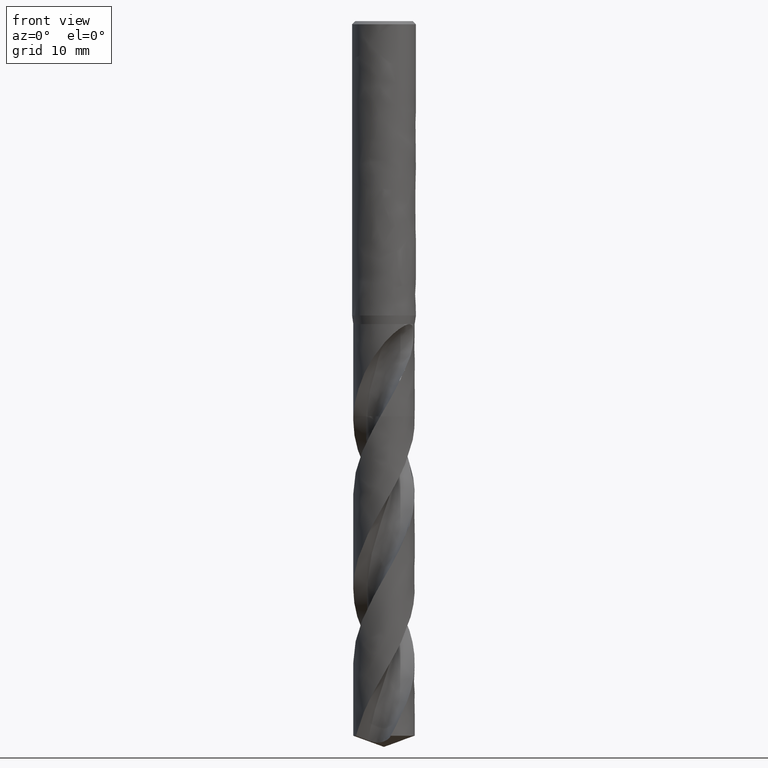
[diagram: clean part render]
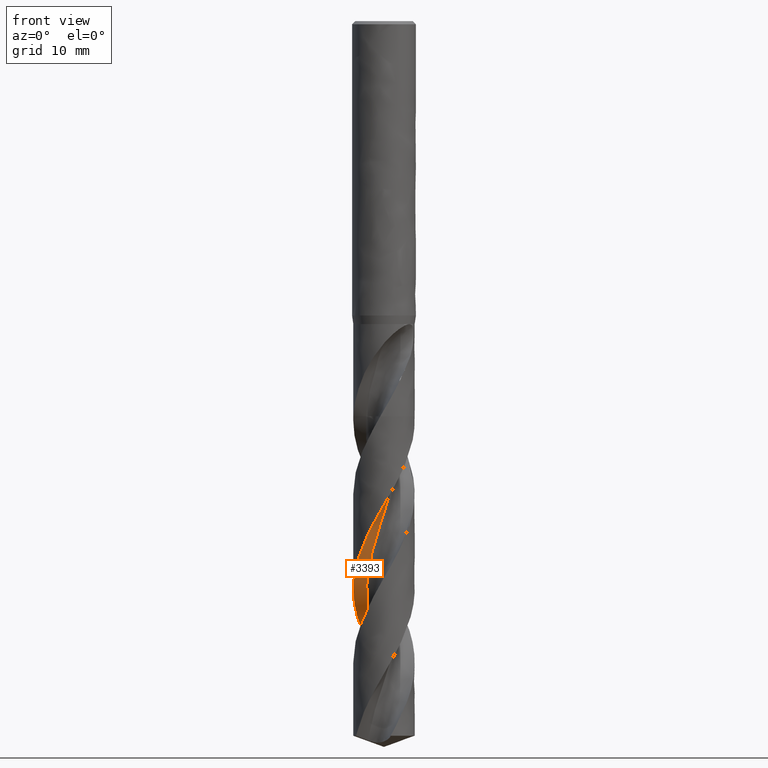
[diagram: same view with one face highlighted and labeled with its STEP entity id]
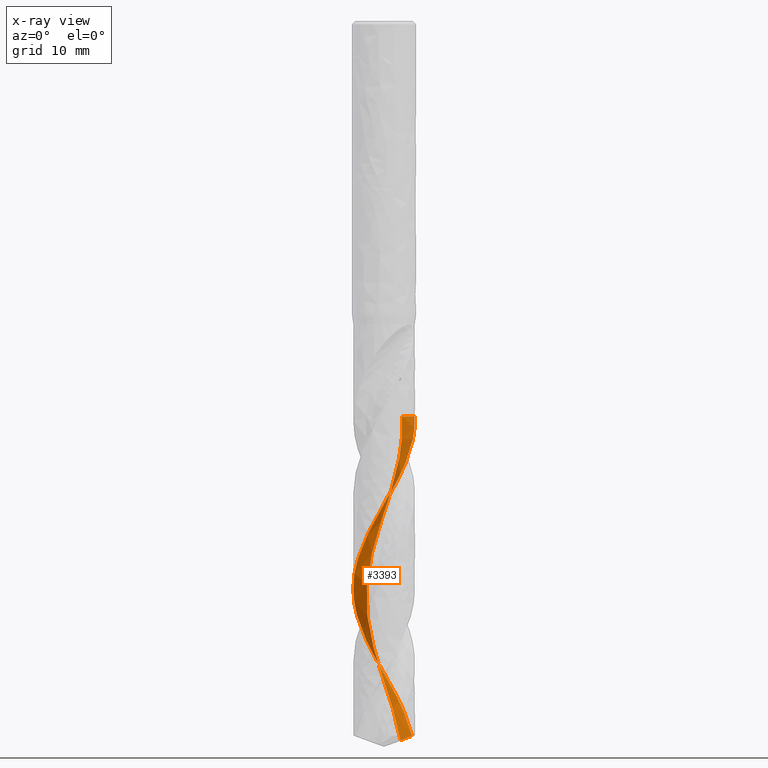
[diagram: x-ray of the same camera — body ghosted, the highlighted face saturated]
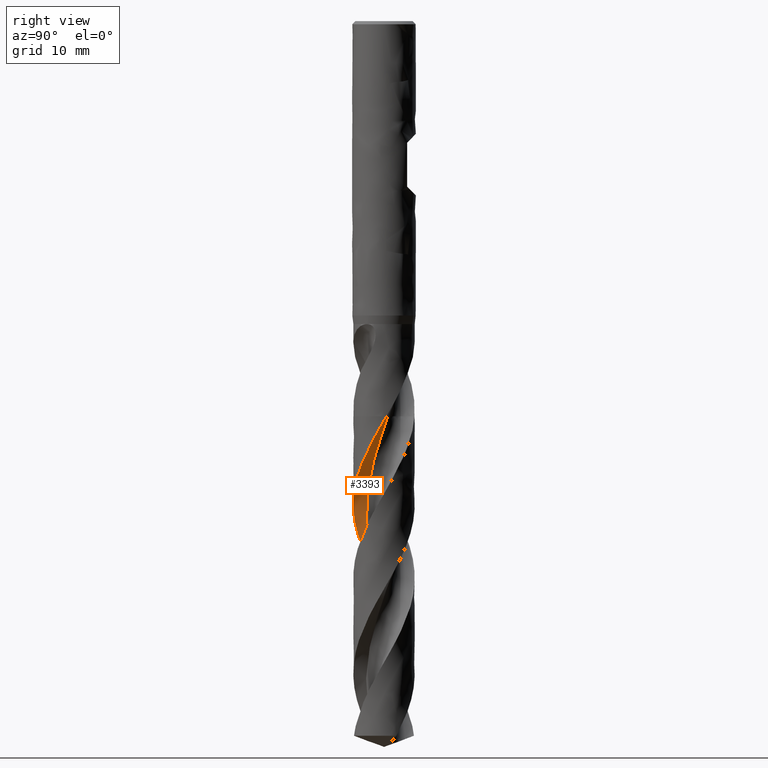
[diagram: same view with one face highlighted and labeled with its STEP entity id]
A machine part, front view. The second image highlights one B-rep face of the part: STEP entity #3393.
The next image is the same camera in x-ray: the body ghosted, the highlighted face saturated — about 0% of this face is hidden behind the body in this view.
A second angle (right view) of the same face is appended — the face is thin or edge-on in the first view.
In plain terms, the highlighted face is a freeform B-spline surface patch.
Its self-contained STEP definition (entity closure, byte-faithful):
#2011 = VERTEX_POINT('', #2012);
#2012 = CARTESIAN_POINT('', (3.83800601079286, 0.303660766510749, -49.55));
#2019 = EDGE_CURVE('', #2011, #2020, #2022, .T.);
#2020 = VERTEX_POINT('', #2021);
#2021 = CARTESIAN_POINT('', (2.24983323965265, 0.501191650524555, -49.55));
#2022 = LINE('', #2023, #2024);
#2023 = CARTESIAN_POINT('', (3.83800601079286, 0.303660766510751, -49.55));
#2024 = VECTOR('', #2025, 1.6004096978994);
#2025 = DIRECTION('', (-1.58817277114021, 0.197530884013801, 7.105427357601E-15));
#2829 = EDGE_CURVE('', #2830, #2020, #2832, .T.);
#2830 = VERTEX_POINT('', #2831);
#2831 = CARTESIAN_POINT('', (2.04984903871205, 1.05382090805576, -90.1610964100838));
#2832 = B_SPLINE_CURVE_WITH_KNOTS('', 3, (#2833, #2834, #2835, #2836, #2837, #2838, #2839, #2840, #2841, #2842, #2843, #2844, #2845, #2846, #2847, #2848, #2849, #2850, #2851, #2852, #2853, #2854, #2855, #2856, #2857, #2858, #2859, #2860, #2861, #2862, #2863, #2864, #2865, #2866, #2867, #2868, #2869, #2870, #2871, #2872, #2873, #2874, #2875, #2876, #2877, #2878, #2879, #2880, #2881, #2882, #2883, #2884, #2885, #2886, #2887, #2888, #2889, #2890, #2891, #2892, #2893), .UNSPECIFIED., .F., .U., (4, 1, 1, 1, 1, 1, 1, 1, 1, 1, 1, 1, 1, 1, 1, 1, 1, 1, 1, 1, 1, 1, 1, 1, 1, 1, 1, 1, 1, 1, 1, 1, 1, 1, 1, 1, 1, 1, 1, 1, 1, 1, 1, 1, 1, 1, 1, 1, 1, 1, 1, 1, 1, 1, 1, 1, 1, 1, 4), (0.888903589916143, 1.4152, 2.1228, 2.8304, 3.538, 4.2456, 4.9532, 5.6608, 6.3684, 7.076, 7.7836, 8.4912, 9.1988, 9.9064, 10.614, 11.3216, 12.0292, 12.7368, 13.4444, 14.152, 14.8596, 15.5672, 16.2748, 16.9824, 17.69, 18.3976, 19.1052, 19.8128, 20.5204, 21.228, 21.9356, 22.6432, 23.3508, 24.0584, 24.766, 25.4736, 26.1812, 26.8888, 27.5964, 28.304, 29.0116, 29.7192, 30.4268, 31.1344, 31.842, 32.5496, 33.2572, 33.9648, 34.6724, 35.38, 36.0876, 36.7952, 37.5028, 38.2104, 38.918, 39.6256, 40.3332, 41.0408, 41.5), .UNSPECIFIED.);
#2833 = CARTESIAN_POINT('', (2.04984903871205, 1.05382090805576, -90.1610964100838));
#2834 = CARTESIAN_POINT('', (2.02103381210276, 1.10648672607858, -89.9856642733892));
#2835 = CARTESIAN_POINT('', (1.94876683453233, 1.22722222135117, -89.5743654700279));
#2836 = CARTESIAN_POINT('', (1.81850024308474, 1.4057788551145, -88.9272));
#2837 = CARTESIAN_POINT('', (1.65695752566754, 1.58468043073655, -88.2196));
#2838 = CARTESIAN_POINT('', (1.47813150573799, 1.7454137495458, -87.512));
#2839 = CARTESIAN_POINT('', (1.28402740732162, 1.88634392457732, -86.8044));
#2840 = CARTESIAN_POINT('', (1.07680032466541, 2.00605253399641, -86.0968));
#2841 = CARTESIAN_POINT('', (0.858733576173096, 2.10335208220543, -85.3892));
#2842 = CARTESIAN_POINT('', (0.63221400838133, 2.17729686671852, -84.6816));
#2843 = CARTESIAN_POINT('', (0.399706887349605, 2.22719164344342, -83.974));
#2844 = CARTESIAN_POINT('', (0.163729993308246, 2.25259762179826, -83.2664));
#2845 = CARTESIAN_POINT('', (-0.0731726494567177, 2.25333585201957, -82.5588));
#2846 = CARTESIAN_POINT('', (-0.308457190811953, 2.22948795730268, -81.8512));
#2847 = CARTESIAN_POINT('', (-0.539606246486566, 2.18139422539124, -81.1436));
#2848 = CARTESIAN_POINT('', (-0.764154807097061, 2.10964908993927, -80.436));
#2849 = CARTESIAN_POINT('', (-0.979715509316002, 2.01509405952071, -79.7284));
#2850 = CARTESIAN_POINT('', (-1.18400302266844, 1.89880817570459, -79.0208));
#2851 = CARTESIAN_POINT('', (-1.37485731492383, 1.76209610512679, -78.3132));
#2852 = CARTESIAN_POINT('', (-1.55026557106053, 1.60647399264726, -77.6056));
#2853 = CARTESIAN_POINT('', (-1.70838255470915, 1.43365322359537, -76.898));
#2854 = CARTESIAN_POINT('', (-1.84754921682157, 1.24552226251797, -76.1904));
#2855 = CARTESIAN_POINT('', (-1.96630937387617, 1.04412675361325, -75.4828));
#2856 = CARTESIAN_POINT('', (-2.06342429705999, 0.831648084004638, -74.7752));
#2857 = CARTESIAN_POINT('', (-2.13788507438417, 0.610380625053217, -74.0676));
#2858 = CARTESIAN_POINT('', (-2.18892262940193, 0.382707878908607, -73.36));
#2859 = CARTESIAN_POINT('', (-2.21601530291157, 0.151077767361003, -72.6524));
#2860 = CARTESIAN_POINT('', (-2.21889392753485, -0.0820226922978167, -71.9448));
#2861 = CARTESIAN_POINT('', (-2.19754434915417, -0.314093074328636, -71.2372));
#2862 = CARTESIAN_POINT('', (-2.15220737365574, -0.542645341387439, -70.5296));
#2863 = CARTESIAN_POINT('', (-2.08337614204358, -0.765229497317555, -69.822));
#2864 = CARTESIAN_POINT('', (-1.99179096154405, -0.979458843679843, -69.1144));
#2865 = CARTESIAN_POINT('', (-1.87843164459659, -1.18303459175878, -68.4068));
#2866 = CARTESIAN_POINT('', (-1.7445074314091, -1.37376958801668, -67.6992));
#2867 = CARTESIAN_POINT('', (-1.5914445948387, -1.54961091943134, -66.9916));
#2868 = CARTESIAN_POINT('', (-1.42087184853484, -1.70866117576985, -66.284));
#2869 = CARTESIAN_POINT('', (-1.23460370035823, -1.84919815853085, -65.5764));
#2870 = CARTESIAN_POINT('', (-1.03462191287736, -1.96969284091967, -64.8688));
#2871 = CARTESIAN_POINT('', (-0.823055251068922, -2.06882539967931, -64.1612));
#2872 = CARTESIAN_POINT('', (-0.602157714043834, -2.14549915774408, -63.4536));
#2873 = CARTESIAN_POINT('', (-0.374285462535127, -2.19885229635597, -62.746));
#2874 = CARTESIAN_POINT('', (-0.141872666880699, -2.22826721631666, -62.0384));
#2875 = CARTESIAN_POINT('', (0.0925934888102589, -2.23337745026038, -61.3308));
#2876 = CARTESIAN_POINT('', (0.326598401807949, -2.21407205103085, -60.6232));
#2877 = CARTESIAN_POINT('', (0.557625994155188, -2.17049740522884, -59.9156));
#2878 = CARTESIAN_POINT('', (0.783184748955086, -2.10305644555703, -59.208));
#2879 = CARTESIAN_POINT('', (1.00083358229532, -2.01240526050243, -58.5004));
#2880 = CARTESIAN_POINT('', (1.20820729399744, -1.89944712497244, -57.7928));
#2881 = CARTESIAN_POINT('', (1.40304134333713, -1.76532400040793, -57.0852));
#2882 = CARTESIAN_POINT('', (1.58319570080842, -1.61140557780637, -56.3776));
#2883 = CARTESIAN_POINT('', (1.74667753585619, -1.43927596030361, -55.67));
#2884 = CARTESIAN_POINT('', (1.8916625058272, -1.25071810875393, -54.9624));
#2885 = CARTESIAN_POINT('', (2.01651444072892, -1.0476961834024, -54.2548));
#2886 = CARTESIAN_POINT('', (2.1198031686167, -0.832335983536132, -53.5472));
#2887 = CARTESIAN_POINT('', (2.20032048194924, -0.606903529274961, -52.8396));
#2888 = CARTESIAN_POINT('', (2.25709337093956, -0.373782510547969, -52.132));
#2889 = CARTESIAN_POINT('', (2.28939700108811, -0.135448871771513, -51.4244));
#2890 = CARTESIAN_POINT('', (2.29675750173599, 0.105549955315949, -50.7168));
#2891 = CARTESIAN_POINT('', (2.28106116815226, 0.318427098840582, -50.092));
#2892 = CARTESIAN_POINT('', (2.25990113224322, 0.449785322491195, -49.7030666666667));
#2893 = CARTESIAN_POINT('', (2.24983323965265, 0.501191650524555, -49.55));
#3393 = ADVANCED_FACE('', (#3394), #3669, .T.);
#3394 = FACE_OUTER_BOUND('', #3395, .T.);
#3395 = EDGE_LOOP('', (#3396, #3397, #3532, #3640, #3668));
#3396 = ORIENTED_EDGE('', *, *, #2019, .F.);
#3397 = ORIENTED_EDGE('', *, *, #3398, .T.);
#3398 = EDGE_CURVE('', #2011, #3399, #3401, .T.);
#3399 = VERTEX_POINT('', #3400);
#3400 = CARTESIAN_POINT('', (-3.85, 4.59519978251764E-15, -71.1953075240469));
#3401 = B_SPLINE_CURVE_WITH_KNOTS('', 3, (#3402, #3403, #3404, #3405, #3406, #3407, #3408, #3409, #3410, #3411, #3412, #3413, #3414, #3415, #3416, #3417, #3418, #3419, #3420, #3421, #3422, #3423, #3424, #3425, #3426, #3427, #3428, #3429, #3430, #3431, #3432, #3433, #3434, #3435, #3436, #3437, #3438, #3439, #3440, #3441, #3442, #3443, #3444, #3445, #3446, #3447, #3448, #3449, #3450, #3451, #3452, #3453, #3454, #3455, #3456, #3457, #3458, #3459, #3460, #3461, #3462, #3463, #3464, #3465, #3466, #3467, #3468, #3469, #3470, #3471, #3472, #3473, #3474, #3475, #3476, #3477, #3478, #3479, #3480, #3481, #3482, #3483, #3484, #3485, #3486, #3487, #3488, #3489, #3490, #3491, #3492, #3493, #3494, #3495, #3496, #3497, #3498, #3499, #3500, #3501, #3502, #3503, #3504, #3505, #3506, #3507, #3508, #3509, #3510, #3511, #3512, #3513, #3514, #3515, #3516, #3517, #3518, #3519, #3520, #3521, #3522, #3523, #3524, #3525, #3526, #3527, #3528, #3529, #3530, #3531), .UNSPECIFIED., .F., .U., (4, 3, 3, 3, 3, 3, 3, 3, 3, 3, 3, 3, 3, 3, 3, 3, 3, 3, 3, 3, 3, 3, 3, 3, 3, 3, 3, 3, 3, 3, 3, 3, 3, 3, 3, 3, 3, 3, 3, 3, 3, 3, 3, 4), (10.9857827631477, 11.188417739098, 11.4837201776455, 11.5712738476636, 11.62965585615, 12.2960882243106, 12.9623371352114, 13.6284118787598, 14.2943172719508, 14.960058236566, 15.6256386833556, 16.2910615719719, 16.9563293275744, 17.6214440337716, 18.2864071459314, 18.9512194453559, 19.6158810105021, 20.2803912615972, 20.9447493495559, 21.608953908022, 22.2730028992134, 22.9368935374582, 23.6006222185998, 23.7319343610657, 23.7903196670728, 24.4567414647797, 25.1229833398523, 25.7890518383752, 26.4549525460622, 27.1206901327414, 27.7862683922648, 28.4516903106396, 29.1169584224096, 29.7820747374945, 30.4470406419059, 31.1118568765424, 31.7765235141929, 32.4410400979626, 33.105405801609, 33.7696192245882, 34.4336783239857, 35.0975803406812, 35.7613217687518, 35.9290390869403), .UNSPECIFIED.);
#3402 = CARTESIAN_POINT('', (3.83800601079286, 0.303660766510749, -49.55));
#3403 = CARTESIAN_POINT('', (3.8406597006322, 0.270120452194859, -49.608569029255));
#3404 = CARTESIAN_POINT('', (3.84287393979801, 0.236541148428157, -49.6671486422412));
#3405 = CARTESIAN_POINT('', (3.84464734947737, 0.202945209741275, -49.7257190602344));
#3406 = CARTESIAN_POINT('', (3.84723176117826, 0.153985435778242, -49.8110744495448));
#3407 = CARTESIAN_POINT('', (3.84888080603868, 0.104976243516454, -49.8964349491654));
#3408 = CARTESIAN_POINT('', (3.84959334240378, 0.0559562161021219, -49.9817919075163));
#3409 = CARTESIAN_POINT('', (3.84980460098361, 0.0414223594715328, -50.0070992331244));
#3410 = CARTESIAN_POINT('', (3.84993355132485, 0.0268872853742352, -50.032406680502));
#3411 = CARTESIAN_POINT('', (3.84998018530962, 0.0123520331640183, -50.0577140433958));
#3412 = CARTESIAN_POINT('', (3.85001128150119, 0.00265972423267838, -50.0745893459951));
#3413 = CARTESIAN_POINT('', (3.85000577691238, -0.00703270454643437, -50.0914646868949));
#3414 = CARTESIAN_POINT('', (3.84996367208802, -0.0167249395367963, -50.1083400080855));
#3415 = CARTESIAN_POINT('', (3.84948304426219, -0.127362091030246, -50.3009723027961));
#3416 = CARTESIAN_POINT('', (3.84422865657569, -0.238001535680308, -50.4936503107669));
#3417 = CARTESIAN_POINT('', (3.83422389558296, -0.348176849520702, -50.6862880958372));
#3418 = CARTESIAN_POINT('', (3.82422188872722, -0.458321834010137, -50.87887285107));
#3419 = CARTESIAN_POINT('', (3.80946771818799, -0.568053307828705, -51.0715061598658));
#3420 = CARTESIAN_POINT('', (3.79002458757251, -0.676914784589994, -51.264098966706));
#3421 = CARTESIAN_POINT('', (3.77058653967992, -0.785747803345779, -51.4566414269285));
#3422 = CARTESIAN_POINT('', (3.74645291760008, -0.893761914520464, -51.6492315149754));
#3423 = CARTESIAN_POINT('', (3.71772580347537, -1.00050729641205, -51.8417808308007));
#3424 = CARTESIAN_POINT('', (3.68900599325625, -1.10722553815344, -52.0342811907156));
#3425 = CARTESIAN_POINT('', (3.65568196523922, -1.21272429520639, -52.2268294018581));
#3426 = CARTESIAN_POINT('', (3.61789391337796, -1.31656508822878, -52.419336939445));
#3427 = CARTESIAN_POINT('', (3.58011519232496, -1.42038024038106, -52.611796942141));
#3428 = CARTESIAN_POINT('', (3.53785754787914, -1.52258531102665, -52.8043048975619));
#3429 = CARTESIAN_POINT('', (3.49129795518707, -1.62275647837457, -52.9967720682146));
#3430 = CARTESIAN_POINT('', (3.44474958854985, -1.72290349329859, -53.1891928328124));
#3431 = CARTESIAN_POINT('', (3.39388029020878, -1.8210628702524, -53.3816613771972));
#3432 = CARTESIAN_POINT('', (3.33890281896738, -1.91682757844614, -53.5740893481465));
#3433 = CARTESIAN_POINT('', (3.2839383621557, -2.0125696169347, -53.7664717669769));
#3434 = CARTESIAN_POINT('', (3.22484253132079, -2.10596189528421, -53.9589017288472));
#3435 = CARTESIAN_POINT('', (3.16186236225687, -2.19661703584021, -54.1512913551711));
#3436 = CARTESIAN_POINT('', (3.09889687604139, -2.28725104155789, -54.343636128841));
#3437 = CARTESIAN_POINT('', (3.03201983967958, -2.37519096740074, -54.5360283246996));
#3438 = CARTESIAN_POINT('', (2.96151039042569, -2.46007239881281, -54.7283802094637));
#3439 = CARTESIAN_POINT('', (2.89101716235371, -2.54493430267002, -54.9206878423588));
#3440 = CARTESIAN_POINT('', (2.81686094903232, -2.62677797023103, -55.1130430088729));
#3441 = CARTESIAN_POINT('', (2.7393504232359, -2.70526509952671, -55.3053577314649));
#3442 = CARTESIAN_POINT('', (2.66185756376597, -2.78373433990683, -55.4976286213692));
#3443 = CARTESIAN_POINT('', (2.58097692323488, -2.85888403940126, -55.6899471586262));
#3444 = CARTESIAN_POINT('', (2.49704434736988, -2.93040432829125, -55.8822251632055));
#3445 = CARTESIAN_POINT('', (2.41313080729968, -3.00190839647637, -56.0744595593932));
#3446 = CARTESIAN_POINT('', (2.32612904043707, -3.069816809754, -56.2667415686434));
#3447 = CARTESIAN_POINT('', (2.23639991120271, -3.1338499385217, -56.4589831324085));
#3448 = CARTESIAN_POINT('', (2.14669112644084, -3.19786854892466, -56.6511811088431));
#3449 = CARTESIAN_POINT('', (2.05421563854165, -3.25804256985556, -56.8434264604821));
#3450 = CARTESIAN_POINT('', (1.95935719420639, -3.31412422602286, -57.0356316478907));
#3451 = CARTESIAN_POINT('', (1.86452034494485, -3.37019311487663, -57.2277930786763));
#3452 = CARTESIAN_POINT('', (1.76725814110251, -3.42219719987466, -57.4200016498762));
#3453 = CARTESIAN_POINT('', (1.66797416686946, -3.46992250326374, -57.61217019994));
#3454 = CARTESIAN_POINT('', (1.56871292721557, -3.51763687825581, -57.8042947462142));
#3455 = CARTESIAN_POINT('', (1.46738538487668, -3.56109630220109, -57.9964664800108));
#3456 = CARTESIAN_POINT('', (1.36441114158311, -3.60012253079307, -58.1885980892258));
#3457 = CARTESIAN_POINT('', (1.26146069506963, -3.6391397406387, -58.3806852978849));
#3458 = CARTESIAN_POINT('', (1.15681777925634, -3.67374346500184, -58.5728198467729));
#3459 = CARTESIAN_POINT('', (1.05091461640444, -3.70379244410746, -58.7649141251484));
#3460 = CARTESIAN_POINT('', (0.945036257758152, -3.7338343852641, -58.9569634119877));
#3461 = CARTESIAN_POINT('', (0.837850928209692, -3.75933715341995, -59.1490600941136));
#3462 = CARTESIAN_POINT('', (0.729800623026448, -3.78019722377421, -59.3411164989748));
#3463 = CARTESIAN_POINT('', (0.621776084141214, -3.80105231971597, -59.5331271049597));
#3464 = CARTESIAN_POINT('', (0.512838642037153, -3.8172762545525, -59.7251849390947));
#3465 = CARTESIAN_POINT('', (0.403437575832972, -3.82880374561117, -59.9172027312444));
#3466 = CARTESIAN_POINT('', (0.294063198180721, -3.84032842452135, -60.1091736803698));
#3467 = CARTESIAN_POINT('', (0.184175763604534, -3.84716416562427, -60.3011915549341));
#3468 = CARTESIAN_POINT('', (0.0742288039468324, -3.84928436006811, -60.4931696496648));
#3469 = CARTESIAN_POINT('', (0.0524768874778473, -3.84970381952914, -60.5311506133354));
#3470 = CARTESIAN_POINT('', (0.0307214690042521, -3.84993889463845, -60.5691320553479));
#3471 = CARTESIAN_POINT('', (0.00896604345663941, -3.84998955973451, -60.6071132916357));
#3472 = CARTESIAN_POINT('', (-0.000707069433455552, -3.85001208695158, -60.6240008852851));
#3473 = CARTESIAN_POINT('', (-0.0103802394914002, -3.84999815824868, -60.6408885341667));
#3474 = CARTESIAN_POINT('', (-0.0200531578907964, -3.84994777508214, -60.6577761790855));
#3475 = CARTESIAN_POINT('', (-0.130461822495741, -3.84937269133732, -60.8505352045229));
#3476 = CARTESIAN_POINT('', (-0.240864733995843, -3.84404367760486, -61.0433417542151));
#3477 = CARTESIAN_POINT('', (-0.350803028482814, -3.83398451160261, -61.2361080127081));
#3478 = CARTESIAN_POINT('', (-0.460711641486346, -3.82392806140535, -61.4288222275658));
#3479 = CARTESIAN_POINT('', (-0.570206537894004, -3.8091393770798, -61.6215837859571));
#3480 = CARTESIAN_POINT('', (-0.678832875322091, -3.78968150738061, -61.8143051239944));
#3481 = CARTESIAN_POINT('', (-0.787430944848844, -3.77022870121532, -62.0069763100345));
#3482 = CARTESIAN_POINT('', (-0.895210652450566, -3.74610025362731, -62.1996949535274));
#3483 = CARTESIAN_POINT('', (-1.00172539476705, -3.71739777713915, -62.3923732237486));
#3484 = CARTESIAN_POINT('', (-1.10821330471165, -3.68870253115736, -62.5850029559469));
#3485 = CARTESIAN_POINT('', (-1.21348491758035, -3.65542264441597, -62.7776803064285));
#3486 = CARTESIAN_POINT('', (-1.31710516335854, -3.6176973323724, -62.9703171443625));
#3487 = CARTESIAN_POINT('', (-1.4207000260147, -3.5799812616329, -63.1629067934066));
#3488 = CARTESIAN_POINT('', (-1.52269059232123, -3.53780511005229, -63.3555440734511));
#3489 = CARTESIAN_POINT('', (-1.62265591820821, -3.49134469382556, -63.5481408902059));
#3490 = CARTESIAN_POINT('', (-1.72259731996746, -3.4448953967036, -63.7406916138698));
#3491 = CARTESIAN_POINT('', (-1.82055933731122, -3.39414300410734, -63.9332897222669));
#3492 = CARTESIAN_POINT('', (-1.91613738601963, -3.33929895605318, -64.1258476854115));
#3493 = CARTESIAN_POINT('', (-2.01169298390169, -3.28446779060351, -64.3183604176118));
#3494 = CARTESIAN_POINT('', (-2.10490941502601, -3.22552180763487, -64.5109202218185));
#3495 = CARTESIAN_POINT('', (-2.19540147640186, -3.16270649245429, -64.7034401014598));
#3496 = CARTESIAN_POINT('', (-2.28587262130903, -3.0999056964984, -64.8959154817719));
#3497 = CARTESIAN_POINT('', (-2.37366215521971, -3.03320856857617, -65.0884379438504));
#3498 = CARTESIAN_POINT('', (-2.45840798508757, -2.96289219831867, -65.2809203909816));
#3499 = CARTESIAN_POINT('', (-2.54313447818604, -2.89259187240741, -65.473358918681));
#3500 = CARTESIAN_POINT('', (-2.62485698860236, -2.8186421883365, -65.6658447191663));
#3501 = CARTESIAN_POINT('', (-2.70323948071356, -2.74134935933227, -65.8582903086561));
#3502 = CARTESIAN_POINT('', (-2.78160424725833, -2.66407400947599, -66.0506923781329));
#3503 = CARTESIAN_POINT('', (-2.8566654101441, -2.58342263556965, -66.2431418424347));
#3504 = CARTESIAN_POINT('', (-2.92811507778246, -2.49972840349967, -66.4355510240829));
#3505 = CARTESIAN_POINT('', (-2.99954866361032, -2.41605300923292, -66.6279168984898));
#3506 = CARTESIAN_POINT('', (-3.06740410090954, -2.3292989591975, -66.8203300439808));
#3507 = CARTESIAN_POINT('', (-3.13140321158257, -2.23982453029035, -67.0127031159817));
#3508 = CARTESIAN_POINT('', (-3.19538792117216, -2.15037023492416, -67.2050329001832));
#3509 = CARTESIAN_POINT('', (-3.25554688357959, -2.05815641650453, -67.3974096047342));
#3510 = CARTESIAN_POINT('', (-3.31163329407851, -1.96356434209594, -67.5897465848711));
#3511 = CARTESIAN_POINT('', (-3.36770704261567, -1.86899362261484, -67.7820401433757));
#3512 = CARTESIAN_POINT('', (-3.41973573119292, -1.77200245369665, -67.9743804486269));
#3513 = CARTESIAN_POINT('', (-3.46750618406489, -1.67299159097459, -68.1666810773206));
#3514 = CARTESIAN_POINT('', (-3.51526579053816, -1.57400320891221, -68.358938043684));
#3515 = CARTESIAN_POINT('', (-3.55879079276785, -1.47295114301325, -68.5512419179997));
#3516 = CARTESIAN_POINT('', (-3.59790357796416, -1.37025174463408, -68.7435059149305));
#3517 = CARTESIAN_POINT('', (-3.63700739803629, -1.26757588620109, -68.9357258426242));
#3518 = CARTESIAN_POINT('', (-3.6717184703276, -1.16320772033958, -69.1279928782281));
#3519 = CARTESIAN_POINT('', (-3.70189585425081, -1.05757604184317, -69.3202198670963));
#3520 = CARTESIAN_POINT('', (-3.73206622674997, -0.951968905848314, -69.5124021938779));
#3521 = CARTESIAN_POINT('', (-3.75771832098156, -0.845052302333049, -69.7046316359959));
#3522 = CARTESIAN_POINT('', (-3.77874851414, -0.7372649909529, -69.8968211043808));
#3523 = CARTESIAN_POINT('', (-3.79977373262139, -0.629503176583666, -70.0889651104854));
#3524 = CARTESIAN_POINT('', (-3.8161885652271, -0.520823125868125, -70.2811559240995));
#3525 = CARTESIAN_POINT('', (-3.82792720079552, -0.411671404654177, -70.4733071502764));
#3526 = CARTESIAN_POINT('', (-3.83966299695195, -0.302546085717027, -70.6654118977556));
#3527 = CARTESIAN_POINT('', (-3.84673017377257, -0.192899736524134, -70.8575631145927));
#3528 = CARTESIAN_POINT('', (-3.84910126568448, -0.0831832104842943, -71.0496749569801));
#3529 = CARTESIAN_POINT('', (-3.84970040438492, -0.0554595206102968, -71.098218684454));
#3530 = CARTESIAN_POINT('', (-3.85, -0.0277293729271328, -71.1467633451832));
#3531 = CARTESIAN_POINT('', (-3.85, 4.37030618227452E-15, -71.1953075240469));
#3532 = ORIENTED_EDGE('', *, *, #3533, .F.);
#3533 = EDGE_CURVE('', #3534, #3399, #3536, .T.);
#3534 = VERTEX_POINT('', #3535);
#3535 = CARTESIAN_POINT('', (3.51907136437724, 1.56161350289376, -89.5987145980751));
#3536 = B_SPLINE_CURVE_WITH_KNOTS('', 3, (#3537, #3538, #3539, #3540, #3541, #3542, #3543, #3544, #3545, #3546, #3547, #3548, #3549, #3550, #3551, #3552, #3553, #3554, #3555, #3556, #3557, #3558, #3559, #3560, #3561, #3562, #3563, #3564, #3565, #3566, #3567, #3568, #3569, #3570, #3571, #3572, #3573, #3574, #3575, #3576, #3577, #3578, #3579, #3580, #3581, #3582, #3583, #3584, #3585, #3586, #3587, #3588, #3589, #3590, #3591, #3592, #3593, #3594, #3595, #3596, #3597, #3598, #3599, #3600, #3601, #3602, #3603, #3604, #3605, #3606, #3607, #3608, #3609, #3610, #3611, #3612, #3613, #3614, #3615, #3616, #3617, #3618, #3619, #3620, #3621, #3622, #3623, #3624, #3625, #3626, #3627, #3628, #3629, #3630, #3631, #3632, #3633, #3634, #3635, #3636, #3637, #3638, #3639), .UNSPECIFIED., .F., .U., (4, 3, 3, 3, 3, 3, 3, 3, 3, 3, 3, 3, 3, 3, 3, 3, 3, 3, 3, 3, 3, 3, 3, 3, 3, 3, 3, 3, 3, 3, 3, 3, 3, 3, 4), (0., 0.665602783752331, 1.33105200962747, 1.99635009825781, 2.66149894500656, 3.3264997529078, 3.99135304436006, 4.65605865120814, 5.32061617383742, 5.98502477839573, 6.64928299761386, 7.31338866126569, 7.97733882824866, 8.64112996040279, 8.93643438353609, 9.02400325784223, 9.69040696364806, 10.3566345207255, 11.0226919707195, 11.688584550422, 12.3543166319874, 13.019891754164, 13.6853126454655, 14.3505814200161, 15.0156998401673, 15.68066908304, 16.3454897035262, 17.0101615987814, 17.6746840160758, 18.339055857437, 19.0032755371221, 19.6673408363914, 20.3312488235741, 20.9949957717568, 21.1802033371128), .UNSPECIFIED.);
#3537 = CARTESIAN_POINT('', (3.51907136437724, 1.56161350289376, -89.5987145980751));
#3538 = CARTESIAN_POINT('', (3.47459668740755, 1.66183648500421, -89.405834877804));
#3539 = CARTESIAN_POINT('', (3.4258242967458, 1.76018558979073, -89.2129156090377));
#3540 = CARTESIAN_POINT('', (3.3729520419318, 1.85625820478405, -89.0200430945475));
#3541 = CARTESIAN_POINT('', (3.32009198501032, 1.95230865534661, -88.827215076707));
#3542 = CARTESIAN_POINT('', (3.26311096961507, 2.04612547484717, -88.634347313108));
#3543 = CARTESIAN_POINT('', (3.20224001206952, 2.13732517533038, -88.4415265147107));
#3544 = CARTESIAN_POINT('', (3.14138287957396, 2.22850416248051, -88.2487495098939));
#3545 = CARTESIAN_POINT('', (3.07661127767366, 2.31710659390583, -88.055932789267));
#3546 = CARTESIAN_POINT('', (3.00818825163263, 2.40276995210517, -87.8631628475518));
#3547 = CARTESIAN_POINT('', (2.93978057447253, 2.48841409401488, -87.6704361486316));
#3548 = CARTESIAN_POINT('', (2.86769292674638, 2.57115820582576, -87.4776701225102));
#3549 = CARTESIAN_POINT('', (2.79221914420026, 2.65066260598395, -87.2849504599995));
#3550 = CARTESIAN_POINT('', (2.71676215947592, 2.73014931124598, -87.0922736901388));
#3551 = CARTESIAN_POINT('', (2.63788638799563, 2.80643368637912, -86.8995579242574));
#3552 = CARTESIAN_POINT('', (2.55591418555713, 2.87920174285649, -86.7068882626993));
#3553 = CARTESIAN_POINT('', (2.47396016692845, 2.95195365727032, -86.5142613408551));
#3554 = CARTESIAN_POINT('', (2.38887384128594, 3.02122390464162, -86.3215953252634));
#3555 = CARTESIAN_POINT('', (2.30100249927346, 3.08672763591758, -86.1289756957308));
#3556 = CARTESIAN_POINT('', (2.21315067622033, 3.15221681677655, -85.9363988530116));
#3557 = CARTESIAN_POINT('', (2.12247627137458, 3.21397013652901, -85.7437824281423));
#3558 = CARTESIAN_POINT('', (2.02934814176745, 3.27173442068654, -85.5512128175422));
#3559 = CARTESIAN_POINT('', (1.93624075939966, 3.32948583602093, -85.3586861079197));
#3560 = CARTESIAN_POINT('', (1.84064049184648, 3.38327496965334, -85.1661196652527));
#3561 = CARTESIAN_POINT('', (1.74293606666943, 3.43288127780483, -84.9736000453824));
#3562 = CARTESIAN_POINT('', (1.6452535356912, 3.48247646987462, -84.7811235664736));
#3563 = CARTESIAN_POINT('', (1.54542517779776, 3.52791231205519, -84.5886076158051));
#3564 = CARTESIAN_POINT('', (1.44385790913812, 3.56900186862089, -84.3961381555103));
#3565 = CARTESIAN_POINT('', (1.34231362968744, 3.61008212478484, -84.2037122596502));
#3566 = CARTESIAN_POINT('', (1.23898580210998, 3.64683639878798, -84.011247274358));
#3567 = CARTESIAN_POINT('', (1.13429686064137, 3.67911275064237, -83.8188284182696));
#3568 = CARTESIAN_POINT('', (1.02963196235399, 3.71138168981146, -83.626453753682));
#3569 = CARTESIAN_POINT('', (0.923558966225784, 3.73918943368902, -83.434040138585));
#3570 = CARTESIAN_POINT('', (0.816511782076303, 3.76242056523866, -83.2416726469539));
#3571 = CARTESIAN_POINT('', (0.709489662433055, 3.78564625734732, -83.0493501971073));
#3572 = CARTESIAN_POINT('', (0.601445759135559, 3.8043079478053, -82.8569884539263));
#3573 = CARTESIAN_POINT('', (0.492820695029716, 3.81832787520283, -82.6646732733877));
#3574 = CARTESIAN_POINT('', (0.384221649696571, 3.83234444443153, -82.4724041577697));
#3575 = CARTESIAN_POINT('', (0.27499439960344, 3.84172761069208, -82.2800953849351));
#3576 = CARTESIAN_POINT('', (0.165583382565825, 3.84643759125494, -82.0878333889125));
#3577 = CARTESIAN_POINT('', (0.11690909978975, 3.84853294629316, -82.002300734022));
#3578 = CARTESIAN_POINT('', (0.0681916119946929, 3.84970436644683, -81.9167650326302));
#3579 = CARTESIAN_POINT('', (0.0194705254552471, 3.84995076574215, -81.8312337144893));
#3580 = CARTESIAN_POINT('', (0.00502288983244598, 3.85002383240566, -81.8058704599601));
#3581 = CARTESIAN_POINT('', (-0.00942531061377872, 3.85001557255631, -81.7805071624923));
#3582 = CARTESIAN_POINT('', (-0.0238730571498382, 3.84992598333297, -81.755144024123));
#3583 = CARTESIAN_POINT('', (-0.133821162666343, 3.84924420466557, -81.5621292168176));
#3584 = CARTESIAN_POINT('', (-0.243771388868583, 3.84384799098029, -81.3690748478817));
#3585 = CARTESIAN_POINT('', (-0.353270515196743, 3.83375794007563, -81.1760673382504));
#3586 = CARTESIAN_POINT('', (-0.462740697910558, 3.82367055624742, -80.9831108457834));
#3587 = CARTESIAN_POINT('', (-0.571808864021165, 3.8088873566827, -80.7901143593101));
#3588 = CARTESIAN_POINT('', (-0.680026882407083, 3.78946743477284, -80.5971651138317));
#3589 = CARTESIAN_POINT('', (-0.78821726961609, 3.77005247132836, -80.4042651338528));
#3590 = CARTESIAN_POINT('', (-0.895605255333421, 3.74599467082985, -80.2113250185074));
#3591 = CARTESIAN_POINT('', (-1.00174990712963, 3.71739117171786, -80.0184321578323));
#3592 = CARTESIAN_POINT('', (-1.10786828476635, 3.68879475287684, -79.8255870442428));
#3593 = CARTESIAN_POINT('', (-1.21279065411349, 3.65564227115086, -79.6327020235187));
#3594 = CARTESIAN_POINT('', (-1.31608534802736, 3.61806845660882, -79.4398639625761));
#3595 = CARTESIAN_POINT('', (-1.41935514512383, 3.58050369837321, -79.2470723808263));
#3596 = CARTESIAN_POINT('', (-1.52104451632448, 3.53850280006676, -79.0542412404228));
#3597 = CARTESIAN_POINT('', (-1.62073398471945, 3.49223729874925, -78.8614567251571));
#3598 = CARTESIAN_POINT('', (-1.72039994936803, 3.44598270543062, -78.6687176626201));
#3599 = CARTESIAN_POINT('', (-1.81811253167332, 3.39544435705809, -78.4759391899377));
#3600 = CARTESIAN_POINT('', (-1.91346834215456, 3.34082907428266, -78.2832073076897));
#3601 = CARTESIAN_POINT('', (-2.00880205624185, 3.28622644727301, -78.090520086376));
#3602 = CARTESIAN_POINT('', (-2.10182328763947, 3.22752407221556, -77.8977931689273));
#3603 = CARTESIAN_POINT('', (-2.19214895662068, 3.16496176153629, -77.7051132271037));
#3604 = CARTESIAN_POINT('', (-2.28245397694559, 3.10241375274557, -77.5124773323592));
#3605 = CARTESIAN_POINT('', (-2.37010449732899, 3.03598001920009, -77.3198013949165));
#3606 = CARTESIAN_POINT('', (-2.45474030167723, 2.96593156551556, -77.1271726514686));
#3607 = CARTESIAN_POINT('', (-2.53935697786853, 2.89589894316655, -76.9345874431755));
#3608 = CARTESIAN_POINT('', (-2.6209973637583, 2.82222254401696, -76.7419622584057));
#3609 = CARTESIAN_POINT('', (-2.69932558819917, 2.74520333835096, -76.5493841086831));
#3610 = CARTESIAN_POINT('', (-2.77763624465364, 2.66820140707573, -76.3568491516965));
#3611 = CARTESIAN_POINT('', (-2.85267106096942, 2.58782387001087, -76.1642745218735));
#3612 = CARTESIAN_POINT('', (-2.92412049382799, 2.50439999552291, -75.9717465973901));
#3613 = CARTESIAN_POINT('', (-2.99555395754914, 2.42099476649179, -75.7792617034075));
#3614 = CARTESIAN_POINT('', (-3.06343607712358, 2.33450665108171, -75.5867374064263));
#3615 = CARTESIAN_POINT('', (-3.12748616845761, 2.2452906863269, -75.3942596055937));
#3616 = CARTESIAN_POINT('', (-3.19152193131817, 2.15609467983536, -75.2018248634516));
#3617 = CARTESIAN_POINT('', (-3.25175659104871, 2.0641313827627, -75.0093506325052));
#3618 = CARTESIAN_POINT('', (-3.3079412110759, 1.96977789206441, -74.8169231299285));
#3619 = CARTESIAN_POINT('', (-3.36411319575249, 1.87544562050822, -74.6245389023434));
#3620 = CARTESIAN_POINT('', (-3.41626203438393, 1.77868219370382, -74.432114803527));
#3621 = CARTESIAN_POINT('', (-3.46417261484926, 1.67988335741755, -74.2397377607934));
#3622 = CARTESIAN_POINT('', (-3.51207233912649, 1.581106908227, -74.0474043092946));
#3623 = CARTESIAN_POINT('', (-3.55575673656531, 1.48025265508359, -73.8550308814694));
#3624 = CARTESIAN_POINT('', (-3.59504546518838, 1.37773295787991, -73.6627045063816));
#3625 = CARTESIAN_POINT('', (-3.63432519547885, 1.27523674085403, -73.4704221799752));
#3626 = CARTESIAN_POINT('', (-3.66922859358842, 1.17103057159822, -73.2781000878443));
#3627 = CARTESIAN_POINT('', (-3.69961101646746, 1.06554133041975, -73.0858247822532));
#3628 = CARTESIAN_POINT('', (-3.72998637775044, 0.960076607444244, -72.8935941660059));
#3629 = CARTESIAN_POINT('', (-3.75585651494514, 0.853281908619242, -72.7013240882075));
#3630 = CARTESIAN_POINT('', (-3.77711358191221, 0.745595727814058, -72.5091005106845));
#3631 = CARTESIAN_POINT('', (-3.79836561323962, 0.637935057057081, -72.3169224694847));
#3632 = CARTESIAN_POINT('', (-3.81501644763891, 0.529334224807686, -72.1247050668311));
#3633 = CARTESIAN_POINT('', (-3.82699607307171, 0.42023928504394, -71.9325341765401));
#3634 = CARTESIAN_POINT('', (-3.8389727926999, 0.311170807591759, -71.7404098996483));
#3635 = CARTESIAN_POINT('', (-3.8462860014844, 0.201559272052325, -71.5482459844265));
#3636 = CARTESIAN_POINT('', (-3.84890411411323, 0.0918537988512029, -71.3561289185683));
#3637 = CARTESIAN_POINT('', (-3.84963465497242, 0.061242308051226, -71.3025218411598));
#3638 = CARTESIAN_POINT('', (-3.85, 0.0306211052272728, -71.2489140882149));
#3639 = CARTESIAN_POINT('', (-3.85, 4.37030618227452E-15, -71.1953075240469));
#3640 = ORIENTED_EDGE('', *, *, #3641, .F.);
#3641 = EDGE_CURVE('', #2830, #3534, #3642, .T.);
#3642 = B_SPLINE_CURVE_WITH_KNOTS('', 3, (#3643, #3644, #3645, #3646, #3647, #3648, #3649, #3650, #3651, #3652, #3653, #3654, #3655, #3656, #3657, #3658, #3659, #3660, #3661, #3662, #3663, #3664, #3665, #3666, #3667), .UNSPECIFIED., .F., .U., (4, 3, 3, 3, 3, 3, 3, 3, 4), (0., 0.197243099384848, 0.394438657001801, 0.591602342071996, 0.788745309669221, 0.985875594264078, 1.18299904019284, 1.38011993209054, 1.65492633639935), .UNSPECIFIED.);
#3643 = CARTESIAN_POINT('', (2.04984903871205, 1.05382090805576, -90.1610964100838));
#3644 = CARTESIAN_POINT('', (2.10996438830042, 1.06887074248036, -90.1391326386411));
#3645 = CARTESIAN_POINT('', (2.16989390504427, 1.08454527048767, -90.117078581695));
#3646 = CARTESIAN_POINT('', (2.22962655343558, 1.10083903576404, -90.0949588177359));
#3647 = CARTESIAN_POINT('', (2.2893448043868, 1.11712887373239, -90.0728443853331));
#3648 = CARTESIAN_POINT('', (2.34887213550721, 1.13403924948566, -90.0506619675871));
#3649 = CARTESIAN_POINT('', (2.40819607514302, 1.15156401079098, -90.0284306975945));
#3650 = CARTESIAN_POINT('', (2.46751042630197, 1.16908593958436, -90.0062030208227));
#3651 = CARTESIAN_POINT('', (2.52662720650166, 1.18722375774732, -89.9839242558838));
#3652 = CARTESIAN_POINT('', (2.5855329910861, 1.2059707123897, -89.9616096846165));
#3653 = CARTESIAN_POINT('', (2.64443258599621, 1.22471569714839, -89.9392974581092));
#3654 = CARTESIAN_POINT('', (2.70312689376321, 1.24407149510218, -89.9169472221319));
#3655 = CARTESIAN_POINT('', (2.76160187640329, 1.26403081761901, -89.8945714755342));
#3656 = CARTESIAN_POINT('', (2.82007309711185, 1.28398885607211, -89.8721971684585));
#3657 = CARTESIAN_POINT('', (2.8783305979969, 1.30455224671896, -89.8497951746463));
#3658 = CARTESIAN_POINT('', (2.93635997059225, 1.3257132123871, -89.8273759414894));
#3659 = CARTESIAN_POINT('', (2.99438733008493, 1.3468734439581, -89.8049574860803));
#3660 = CARTESIAN_POINT('', (3.05219206830473, 1.36863321270441, -89.7825196388711));
#3661 = CARTESIAN_POINT('', (3.10975958296559, 1.390984289512, -89.7600713067711));
#3662 = CARTESIAN_POINT('', (3.16732635175261, 1.41333507672774, -89.737623265523));
#3663 = CARTESIAN_POINT('', (3.22466130823647, 1.43627925605108, -89.7151626087011));
#3664 = CARTESIAN_POINT('', (3.28174978704822, 1.45980817654692, -89.6926970661775));
#3665 = CARTESIAN_POINT('', (3.36133688427919, 1.49260986477226, -89.6613778340946));
#3666 = CARTESIAN_POINT('', (3.44045727659686, 1.52655320537045, -89.6300443257213));
#3667 = CARTESIAN_POINT('', (3.51907136437724, 1.56161350289376, -89.5987145980751));
#3668 = ORIENTED_EDGE('', *, *, #2829, .T.);
#3669 = B_SPLINE_SURFACE_WITH_KNOTS('', 3, 1, ((#3670, #3671), (#3672, #3673), (#3674, #3675), (#3676, #3677), (#3678, #3679), (#3680, #3681), (#3682, #3683), (#3684, #3685), (#3686, #3687), (#3688, #3689), (#3690, #3691), (#3692, #3693), (#3694, #3695), (#3696, #3697), (#3698, #3699), (#3700, #3701), (#3702, #3703), (#3704, #3705), (#3706, #3707), (#3708, #3709), (#3710, #3711), (#3712, #3713), (#3714, #3715), (#3716, #3717), (#3718, #3719), (#3720, #3721), (#3722, #3723), (#3724, #3725), (#3726, #3727), (#3728, #3729), (#3730, #3731), (#3732, #3733), (#3734, #3735), (#3736, #3737), (#3738, #3739), (#3740, #3741), (#3742, #3743), (#3744, #3745), (#3746, #3747), (#3748, #3749), (#3750, #3751), (#3752, #3753), (#3754, #3755), (#3756, #3757), (#3758, #3759), (#3760, #3761), (#3762, #3763), (#3764, #3765), (#3766, #3767), (#3768, #3769), (#3770, #3771), (#3772, #3773), (#3774, #3775), (#3776, #3777), (#3778, #3779), (#3780, #3781), (#3782, #3783), (#3784, #3785), (#3786, #3787), (#3788, #3789), (#3790, #3791)), .UNSPECIFIED., .F., .F., .U., (4, 1, 1, 1, 1, 1, 1, 1, 1, 1, 1, 1, 1, 1, 1, 1, 1, 1, 1, 1, 1, 1, 1, 1, 1, 1, 1, 1, 1, 1, 1, 1, 1, 1, 1, 1, 1, 1, 1, 1, 1, 1, 1, 1, 1, 1, 1, 1, 1, 1, 1, 1, 1, 1, 1, 1, 1, 1, 4), (2, 2), (0.888903589916141, 1.4152, 2.1228, 2.8304, 3.538, 4.2456, 4.9532, 5.6608, 6.3684, 7.076, 7.7836, 8.4912, 9.1988, 9.9064, 10.614, 11.3216, 12.0292, 12.7368, 13.4444, 14.152, 14.8596, 15.5672, 16.2748, 16.9824, 17.69, 18.3976, 19.1052, 19.8128, 20.5204, 21.228, 21.9356, 22.6432, 23.3508, 24.0584, 24.766, 25.4736, 26.1812, 26.8888, 27.5964, 28.304, 29.0116, 29.7192, 30.4268, 31.1344, 31.842, 32.5496, 33.2572, 33.9648, 34.6724, 35.38, 36.0876, 36.7952, 37.5028, 38.2104, 38.918, 39.6256, 40.3332, 41.0408, 41.5), (0., 0.203139563372146), .UNSPECIFIED.);
#3670 = CARTESIAN_POINT('', (2.04984903871205, 1.05382090805576, -90.1610964100839));
#3671 = CARTESIAN_POINT('', (3.79364315616938, 1.28522612876684, -90.1610964100839));
#3672 = CARTESIAN_POINT('', (2.02103381210276, 1.10648672607858, -89.9856642733892));
#3673 = CARTESIAN_POINT('', (3.75763196867158, 1.3831409393116, -89.9856642733892));
#3674 = CARTESIAN_POINT('', (1.94876683453233, 1.22722222135117, -89.5743654700279));
#3675 = CARTESIAN_POINT('', (3.66440588594724, 1.6092022559875, -89.5743654700279));
#3676 = CARTESIAN_POINT('', (1.81850024308474, 1.4057788551145, -88.9272));
#3677 = CARTESIAN_POINT('', (3.4863305356348, 1.94952861116046, -88.9272));
#3678 = CARTESIAN_POINT('', (1.65695752566754, 1.58468043073655, -88.2196));
#3679 = CARTESIAN_POINT('', (3.25458743613662, 2.29847408309053, -88.2196));
#3680 = CARTESIAN_POINT('', (1.47813150573799, 1.7454137495458, -87.512));
#3681 = CARTESIAN_POINT('', (2.98847599048146, 2.62062794631917, -87.512));
#3682 = CARTESIAN_POINT('', (1.28402740732162, 1.88634392457732, -86.8044));
#3683 = CARTESIAN_POINT('', (2.69102315167996, 2.91266562538959, -86.8044));
#3684 = CARTESIAN_POINT('', (1.07680032466541, 2.00605253399641, -86.0968));
#3685 = CARTESIAN_POINT('', (2.36556901465421, 3.17159613677197, -86.0968));
#3686 = CARTESIAN_POINT('', (0.858733576173096, 2.10335208220543, -85.3892));
#3687 = CARTESIAN_POINT('', (2.01573332285235, 3.39479249901548, -85.3892));
#3688 = CARTESIAN_POINT('', (0.63221400838133, 2.17729686671852, -84.6816));
#3689 = CARTESIAN_POINT('', (1.64537581033369, 3.58001674796105, -84.6816));
#3690 = CARTESIAN_POINT('', (0.399706887349605, 2.22719164344342, -83.974));
#3691 = CARTESIAN_POINT('', (1.25855526973108, 3.72544127381612, -83.974));
#3692 = CARTESIAN_POINT('', (0.163729993308246, 2.25259762179826, -83.2664));
#3693 = CARTESIAN_POINT('', (0.859486565570586, 3.82966577331083, -83.2664));
#3694 = CARTESIAN_POINT('', (-0.0731726494567177, 2.25333585201957, -82.5588));
#3695 = CARTESIAN_POINT('', (0.452496351419885, 3.89172981325464, -82.5588));
#3696 = CARTESIAN_POINT('', (-0.308457190811953, 2.22948795730268, -81.8512));
#3697 = CARTESIAN_POINT('', (0.0419778511164218, 3.91112086849157, -81.8512));
#3698 = CARTESIAN_POINT('', (-0.539606246486566, 2.18139422539124, -81.1436));
#3699 = CARTESIAN_POINT('', (-0.367654820215214, 3.88777778890979, -81.1436));
#3700 = CARTESIAN_POINT('', (-0.764154807097061, 2.10964908993927, -80.436));
#3701 = CARTESIAN_POINT('', (-0.772012347251375, 3.82208968188042, -80.436));
#3702 = CARTESIAN_POINT('', (-0.979715509316002, 2.01509405952071, -79.7284));
#3703 = CARTESIAN_POINT('', (-1.16677546423131, 3.71489024411538, -79.7284));
#3704 = CARTESIAN_POINT('', (-1.18400302266844, 1.89880817570459, -79.0208));
#3705 = CARTESIAN_POINT('', (-1.54773931879632, 3.56744761962082, -79.0208));
#3706 = CARTESIAN_POINT('', (-1.37485731492383, 1.76209610512679, -78.3132));
#3707 = CARTESIAN_POINT('', (-1.91085651557568, 3.38144990326898, -78.3132));
#3708 = CARTESIAN_POINT('', (-1.55026557106053, 1.60647399264726, -77.6056));
#3709 = CARTESIAN_POINT('', (-2.2522784201441, 3.15898645067784, -77.6056));
#3710 = CARTESIAN_POINT('', (-1.70838255470915, 1.43365322359537, -76.898));
#3711 = CARTESIAN_POINT('', (-2.56839432254897, 2.90252519460808, -76.898));
#3712 = CARTESIAN_POINT('', (-1.84754921682157, 1.24552226251797, -76.1904));
#3713 = CARTESIAN_POINT('', (-2.85586808185076, 2.61488620551655, -76.1904));
#3714 = CARTESIAN_POINT('', (-1.96630937387617, 1.04412675361325, -75.4828));
#3715 = CARTESIAN_POINT('', (-3.11167189874758, 2.29921176895272, -75.4828));
#3716 = CARTESIAN_POINT('', (-2.06342429705999, 0.831648084004638, -74.7752));
#3717 = CARTESIAN_POINT('', (-3.33311689213681, 1.95893328484439, -74.7752));
#3718 = CARTESIAN_POINT('', (-2.13788507438417, 0.610380625053217, -74.0676));
#3719 = CARTESIAN_POINT('', (-3.51788018712389, 1.59773532312233, -74.0676));
#3720 = CARTESIAN_POINT('', (-2.18892262940193, 0.382707878908607, -73.36));
#3721 = CARTESIAN_POINT('', (-3.66402825622817, 1.21951719633381, -73.36));
#3722 = CARTESIAN_POINT('', (-2.21601530291157, 0.151077767361003, -72.6524));
#3723 = CARTESIAN_POINT('', (-3.77003629204292, 0.828352432674748, -72.6524));
#3724 = CARTESIAN_POINT('', (-2.21889392753485, -0.0820226922978167, -71.9448));
#3725 = CARTESIAN_POINT('', (-3.83480342804965, 0.428446552043828, -71.9448));
#3726 = CARTESIAN_POINT('', (-2.19754434915417, -0.314093074328636, -71.2372));
#3727 = CARTESIAN_POINT('', (-3.85766366431909, 0.024093563130665, -71.2372));
#3728 = CARTESIAN_POINT('', (-2.15220737365574, -0.542645341387439, -70.5296));
#3729 = CARTESIAN_POINT('', (-3.83839239609616, -0.380368388927904, -70.5296));
#3730 = CARTESIAN_POINT('', (-2.08337614204358, -0.765229497317555, -69.822));
#3731 = CARTESIAN_POINT('', (-3.77720848539498, -0.780601787247744, -69.822));
#3732 = CARTESIAN_POINT('', (-1.99179096154405, -0.979458843679843, -69.1144));
#3733 = CARTESIAN_POINT('', (-3.67477185835211, -1.17231447967368, -69.1144));
#3734 = CARTESIAN_POINT('', (-1.87843164459659, -1.18303459175878, -68.4068));
#3735 = CARTESIAN_POINT('', (-3.53217665382362, -1.55130394701045, -68.4068));
#3736 = CARTESIAN_POINT('', (-1.7445074314091, -1.37376958801668, -67.6992));
#3737 = CARTESIAN_POINT('', (-3.35093999118958, -1.91350066759879, -67.6992));
#3738 = CARTESIAN_POINT('', (-1.5914445948387, -1.54961091943134, -66.9916));
#3739 = CARTESIAN_POINT('', (-3.13298646717306, -2.25501015144957, -66.9916));
#3740 = CARTESIAN_POINT('', (-1.42087184853484, -1.70866117576985, -66.284));
#3741 = CARTESIAN_POINT('', (-2.88062853232226, -2.57215322970685, -66.284));
#3742 = CARTESIAN_POINT('', (-1.23460370035823, -1.84919815853085, -65.5764));
#3743 = CARTESIAN_POINT('', (-2.59654293728322, -2.86150420159532, -65.5764));
#3744 = CARTESIAN_POINT('', (-1.03462191287736, -1.96969284091967, -64.8688));
#3745 = CARTESIAN_POINT('', (-2.28374347675709, -3.11992646107793, -64.8688));
#3746 = CARTESIAN_POINT('', (-0.823055251068922, -2.06882539967931, -64.1612));
#3747 = CARTESIAN_POINT('', (-1.94555029475523, -3.34460524903624, -64.1612));
#3748 = CARTESIAN_POINT('', (-0.602157714043834, -2.14549915774408, -63.4536));
#3749 = CARTESIAN_POINT('', (-1.58555604811683, -3.53307720368585, -63.4536));
#3750 = CARTESIAN_POINT('', (-0.374285462535127, -2.19885229635597, -62.746));
#3751 = CARTESIAN_POINT('', (-1.20758925593728, -3.6832564119256, -62.746));
#3752 = CARTESIAN_POINT('', (-0.141872666880699, -2.22826721631666, -62.0384));
#3753 = CARTESIAN_POINT('', (-0.815675190291221, -3.79345669713499, -62.0384));
#3754 = CARTESIAN_POINT('', (0.0925934888102589, -2.23337745026038, -61.3308));
#3755 = CARTESIAN_POINT('', (-0.413994688164758, -3.86240991429946, -61.3308));
#3756 = CARTESIAN_POINT('', (0.326598401807949, -2.21407205103085, -60.6232));
#3757 = CARTESIAN_POINT('', (-0.00684128560788224, -3.88928006095495, -60.6232));
#3758 = CARTESIAN_POINT('', (0.557625994155188, -2.17049740522884, -59.9156));
#3759 = CARTESIAN_POINT('', (0.401422907425968, -3.87367305197708, -59.9156));
#3760 = CARTESIAN_POINT('', (0.783184748955086, -2.10305644555703, -59.208));
#3761 = CARTESIAN_POINT('', (0.806412159438235, -3.81564204735648, -59.208));
#3762 = CARTESIAN_POINT('', (1.00083358229532, -2.01240526050243, -58.5004));
#3763 = CARTESIAN_POINT('', (1.20376245515054, -3.71568826443279, -58.5004));
#3764 = CARTESIAN_POINT('', (1.20820729399744, -1.89944712497244, -57.7928));
#3765 = CARTESIAN_POINT('', (1.58917677121818, -3.57475724927309, -57.7928));
#3766 = CARTESIAN_POINT('', (1.40304134333713, -1.76532400040793, -57.0852));
#3767 = CARTESIAN_POINT('', (1.95846984112414, -3.39423062544984, -57.0852));
#3768 = CARTESIAN_POINT('', (1.58319570080842, -1.61140557780637, -56.3776));
#3769 = CARTESIAN_POINT('', (2.3076119625625, -3.17591338255151, -56.3776));
#3770 = CARTESIAN_POINT('', (1.74667753585619, -1.43927596030361, -55.67));
#3771 = CARTESIAN_POINT('', (2.63277140987494, -2.92201680893219, -55.67));
#3772 = CARTESIAN_POINT('', (1.8916625058272, -1.25071810875393, -54.9624));
#3773 = CARTESIAN_POINT('', (2.93035501638375, -2.63513722062136, -54.9624));
#3774 = CARTESIAN_POINT('', (2.01651444072892, -1.0476961834024, -54.2548));
#3775 = CARTESIAN_POINT('', (3.19704653941317, -2.31823066243722, -54.2548));
#3776 = CARTESIAN_POINT('', (2.1198031686167, -0.832335983536132, -53.5472));
#3777 = CARTESIAN_POINT('', (3.42984231759697, -1.97458386281348, -53.5472));
#3778 = CARTESIAN_POINT('', (2.20032048194924, -0.606903529274961, -52.8396));
#3779 = CARTESIAN_POINT('', (3.62608420972361, -1.60778151832845, -52.8396));
#3780 = CARTESIAN_POINT('', (2.25709337093956, -0.373782510547969, -52.132));
#3781 = CARTESIAN_POINT('', (3.78348812690126, -1.22167092983632, -52.132));
#3782 = CARTESIAN_POINT('', (2.28939700108811, -0.135448871771513, -51.4244));
#3783 = CARTESIAN_POINT('', (3.90017286008363, -0.820321649896847, -51.4244));
#3784 = CARTESIAN_POINT('', (2.29675750173599, 0.105549955315949, -50.7168));
#3785 = CARTESIAN_POINT('', (3.97467020231262, -0.407990504538831, -50.7168));
#3786 = CARTESIAN_POINT('', (2.28106116815226, 0.318427098840583, -50.092));
#3787 = CARTESIAN_POINT('', (4.00232156115877, -0.0380769225232177, -50.092));
#3788 = CARTESIAN_POINT('', (2.25990113224322, 0.449785322491197, -49.7030666666667));
#3789 = CARTESIAN_POINT('', (3.9996622947232, 0.19312702310512, -49.7030666666667));
#3790 = CARTESIAN_POINT('', (2.24983323965265, 0.501191650524557, -49.55));
#3791 = CARTESIAN_POINT('', (3.9955501274797, 0.284066028957114, -49.55));